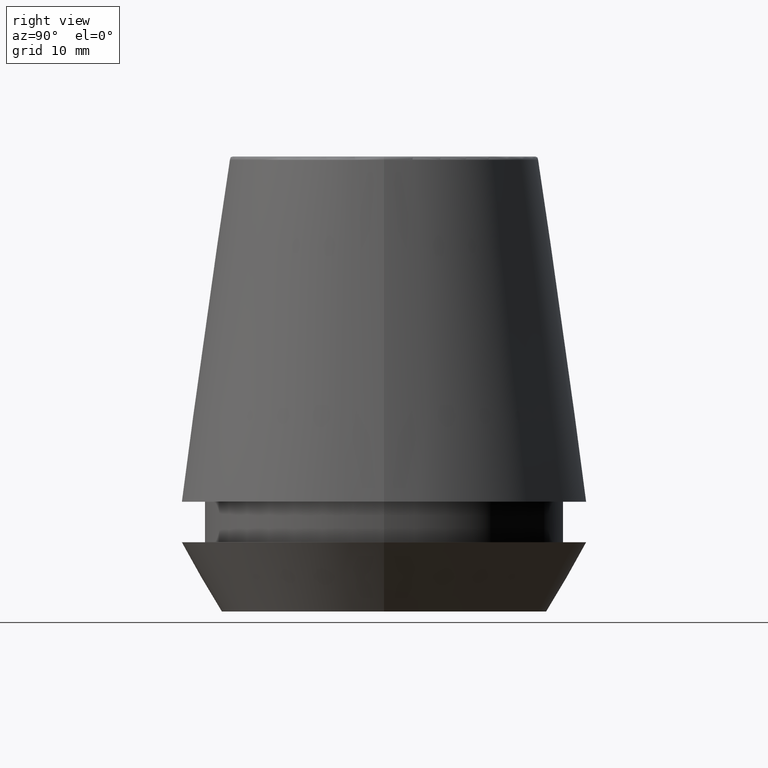
[diagram: clean part render]
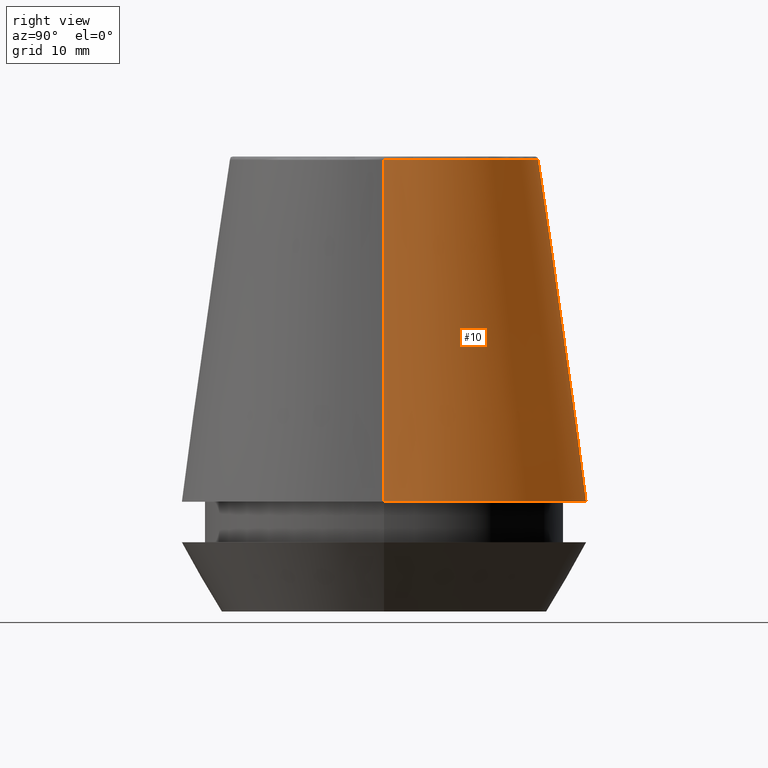
[diagram: same view with one face highlighted and labeled with its STEP entity id]
A machine part, right view. The second image highlights one B-rep face of the part: STEP entity #10.
In plain terms, the highlighted conical surface has half-angle 8 deg.
Its self-contained STEP definition (entity closure, byte-faithful):
#1 = EDGE_LOOP ( 'NONE', ( #7, #213, #181, #353 ) ) ;
#5 = CARTESIAN_POINT ( 'NONE',  ( -20.50032537154048700, 0.0000000000000000000, 11.09999999999999800 ) ) ;
#7 = ORIENTED_EDGE ( 'NONE', *, *, #112, .F. ) ;
#10 = ADVANCED_FACE ( 'NONE', ( #216 ), #357, .T. ) ;
#20 = CARTESIAN_POINT ( 'NONE',  ( 20.50032537154048700, 2.510565784773633700E-015, 11.09999999999999800 ) ) ;
#21 = CARTESIAN_POINT ( 'NONE',  ( -15.64384277279740400, 0.0000000000000000000, 45.65566924038402900 ) ) ;
#25 = VECTOR ( 'NONE', #166, 1000.000000000000000 ) ;
#30 = CARTESIAN_POINT ( 'NONE',  ( 0.0000000000000000000, 0.0000000000000000000, 11.09999999999999800 ) ) ;
#31 = VECTOR ( 'NONE', #36, 1000.000000000000000 ) ;
#36 = DIRECTION ( 'NONE',  ( -0.1391731009600587200, 0.0000000000000000000, -0.9902680687415712500 ) ) ;
#63 = EDGE_CURVE ( 'NONE', #362, #290, #266, .T. ) ;
#78 = CIRCLE ( 'NONE', #297, 15.64384277279740400 ) ;
#112 = EDGE_CURVE ( 'NONE', #347, #362, #78, .T. ) ;
#120 = AXIS2_PLACEMENT_3D ( 'NONE', #361, #329, #318 ) ;
#125 = VERTEX_POINT ( 'NONE', #352 ) ;
#138 = CARTESIAN_POINT ( 'NONE',  ( -20.50032537154048700, 0.0000000000000000000, 11.09999999999999800 ) ) ;
#166 = DIRECTION ( 'NONE',  ( 0.1391731009600587200, 1.704378926181473400E-017, -0.9902680687415712500 ) ) ;
#176 = CARTESIAN_POINT ( 'NONE',  ( 0.0000000000000000000, 0.0000000000000000000, 45.65566924038402900 ) ) ;
#181 = ORIENTED_EDGE ( 'NONE', *, *, #323, .T. ) ;
#193 = CARTESIAN_POINT ( 'NONE',  ( 15.64384277279740400, 2.213191991290356800E-015, 45.65566924038402900 ) ) ;
#202 = DIRECTION ( 'NONE',  ( 1.000000000000000000, 0.0000000000000000000, 0.0000000000000000000 ) ) ;
#213 = ORIENTED_EDGE ( 'NONE', *, *, #340, .T. ) ;
#216 = FACE_OUTER_BOUND ( 'NONE', #1, .T. ) ;
#245 = DIRECTION ( 'NONE',  ( 1.000000000000000000, 0.0000000000000000000, 0.0000000000000000000 ) ) ;
#266 = LINE ( 'NONE', #5, #31 ) ;
#290 = VERTEX_POINT ( 'NONE', #138 ) ;
#297 = AXIS2_PLACEMENT_3D ( 'NONE', #176, #385, #202 ) ;
#318 = DIRECTION ( 'NONE',  ( -1.000000000000000000, 0.0000000000000000000, 0.0000000000000000000 ) ) ;
#323 = EDGE_CURVE ( 'NONE', #125, #290, #350, .T. ) ;
#329 = DIRECTION ( 'NONE',  ( 0.0000000000000000000, 0.0000000000000000000, -1.000000000000000000 ) ) ;
#337 = LINE ( 'NONE', #20, #25 ) ;
#338 = AXIS2_PLACEMENT_3D ( 'NONE', #30, #342, #245 ) ;
#340 = EDGE_CURVE ( 'NONE', #347, #125, #337, .T. ) ;
#342 = DIRECTION ( 'NONE',  ( -0.0000000000000000000, -0.0000000000000000000, 1.000000000000000000 ) ) ;
#347 = VERTEX_POINT ( 'NONE', #193 ) ;
#350 = CIRCLE ( 'NONE', #338, 20.50032537154048700 ) ;
#352 = CARTESIAN_POINT ( 'NONE',  ( 20.50032537154048700, 2.510565784773633700E-015, 11.09999999999999800 ) ) ;
#353 = ORIENTED_EDGE ( 'NONE', *, *, #63, .F. ) ;
#357 = CONICAL_SURFACE ( 'NONE', #120, 20.50032537154048700, 0.1396263401595396200 ) ;
#361 = CARTESIAN_POINT ( 'NONE',  ( 0.0000000000000000000, 0.0000000000000000000, 11.09999999999999800 ) ) ;
#362 = VERTEX_POINT ( 'NONE', #21 ) ;
#385 = DIRECTION ( 'NONE',  ( -0.0000000000000000000, -0.0000000000000000000, 1.000000000000000000 ) ) ;